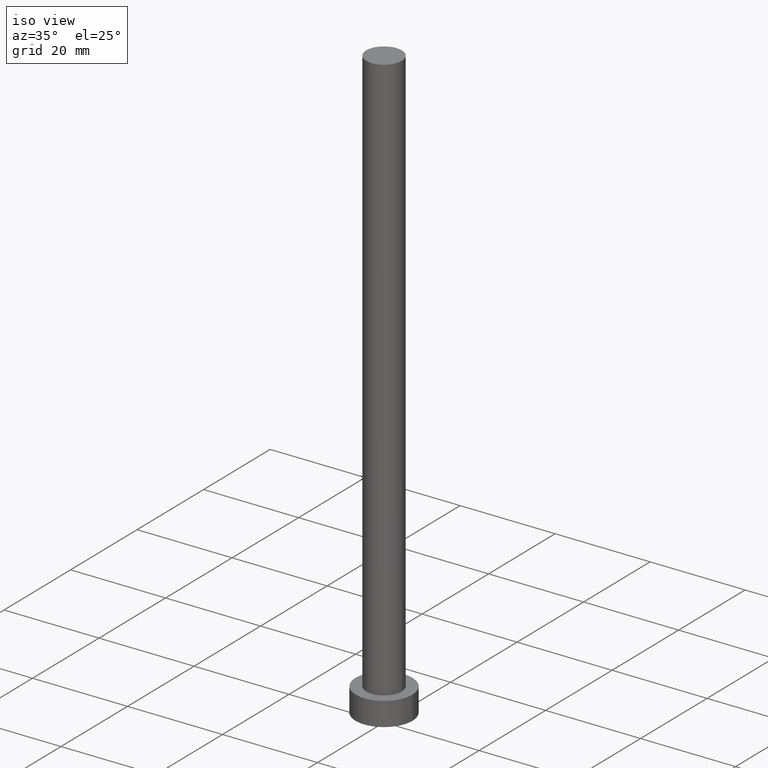
[diagram: clean part render]
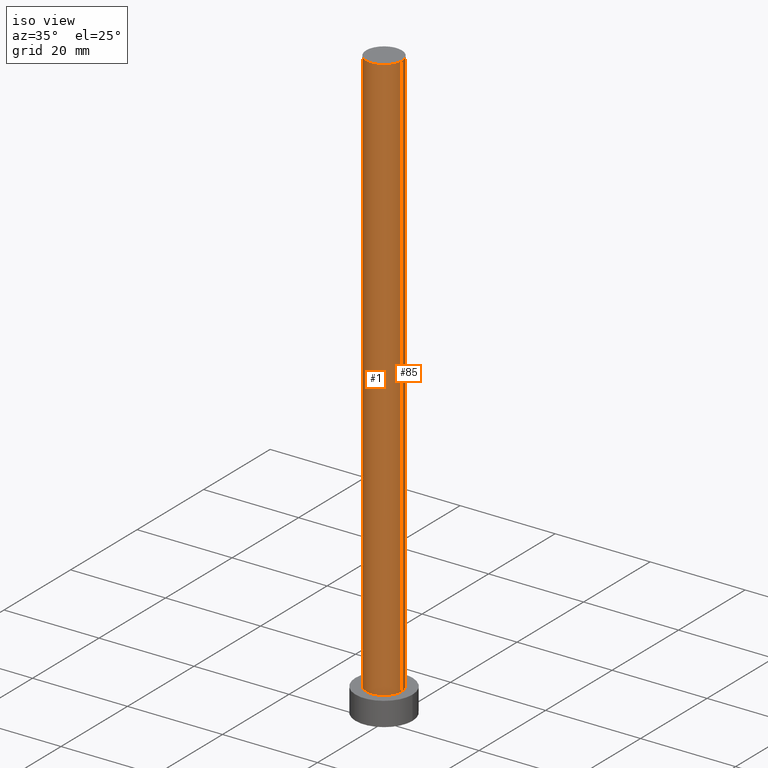
[diagram: same view with one multi-face feature highlighted, each face labeled with its STEP entity id]
A machine part, iso view. The highlighted faces form ONE feature: a constant-radius fillet chain: 2 tangent blend faces with common blend radius 3.75 mm. The faces share edges in the B-rep.
Their STEP definitions:
[1] entity #85 (Cylinder):
#13 = CARTESIAN_POINT ( 'NONE',  ( 0.000000000000000000, 0.000000000000000000, 125.0000000000000000 ) ) ;
#16 = CARTESIAN_POINT ( 'NONE',  ( -3.750000000000000000, 0.000000000000000000, 125.0000000000000000 ) ) ;
#17 = AXIS2_PLACEMENT_3D ( 'NONE', #13, #113, #59 ) ;
#26 = ORIENTED_EDGE ( 'NONE', *, *, #102, .F. ) ;
#39 = DIRECTION ( 'NONE',  ( 1.000000000000000000, 0.000000000000000000, 0.000000000000000000 ) ) ;
#46 = AXIS2_PLACEMENT_3D ( 'NONE', #171, #93, #39 ) ;
#53 = VERTEX_POINT ( 'NONE', #145 ) ;
#59 = DIRECTION ( 'NONE',  ( 1.000000000000000000, 0.000000000000000000, 0.000000000000000000 ) ) ;
#76 = DIRECTION ( 'NONE',  ( -1.000000000000000000, 0.000000000000000000, 0.000000000000000000 ) ) ;
#77 = EDGE_CURVE ( 'NONE', #225, #53, #94, .T. ) ;
#81 = LINE ( 'NONE', #208, #109 ) ;
#85 = ADVANCED_FACE ( 'NONE', ( #190 ), #152, .T. ) ;
#93 = DIRECTION ( 'NONE',  ( 0.000000000000000000, 0.000000000000000000, 1.000000000000000000 ) ) ;
#94 = LINE ( 'NONE', #139, #184 ) ;
#102 = EDGE_CURVE ( 'NONE', #225, #226, #135, .T. ) ;
#109 = VECTOR ( 'NONE', #211, 1000.000000000000000 ) ;
#111 = ORIENTED_EDGE ( 'NONE', *, *, #77, .T. ) ;
#113 = DIRECTION ( 'NONE',  ( 0.000000000000000000, 0.000000000000000000, 1.000000000000000000 ) ) ;
#119 = CIRCLE ( 'NONE', #46, 3.750000000000000000 ) ;
#126 = ORIENTED_EDGE ( 'NONE', *, *, #164, .T. ) ;
#135 = CIRCLE ( 'NONE', #17, 3.750000000000000000 ) ;
#138 = CARTESIAN_POINT ( 'NONE',  ( 3.750000000000000000, 4.592425496802573972E-16, 125.0000000000000000 ) ) ;
#139 = CARTESIAN_POINT ( 'NONE',  ( 3.750000000000000000, 4.592425496802573972E-16, 125.0000000000000000 ) ) ;
#145 = CARTESIAN_POINT ( 'NONE',  ( 3.750000000000000000, 4.592425496802573972E-16, 5.000000000000000000 ) ) ;
#152 = CYLINDRICAL_SURFACE ( 'NONE', #247, 3.750000000000000000 ) ;
#160 = EDGE_LOOP ( 'NONE', ( #26, #111, #126, #181 ) ) ;
#164 = EDGE_CURVE ( 'NONE', #53, #223, #119, .T. ) ;
#171 = CARTESIAN_POINT ( 'NONE',  ( 0.000000000000000000, 0.000000000000000000, 5.000000000000000000 ) ) ;
#181 = ORIENTED_EDGE ( 'NONE', *, *, #191, .F. ) ;
#184 = VECTOR ( 'NONE', #214, 1000.000000000000000 ) ;
#188 = CARTESIAN_POINT ( 'NONE',  ( 0.000000000000000000, 0.000000000000000000, 125.0000000000000000 ) ) ;
#190 = FACE_OUTER_BOUND ( 'NONE', #160, .T. ) ;
#191 = EDGE_CURVE ( 'NONE', #226, #223, #81, .T. ) ;
#192 = CARTESIAN_POINT ( 'NONE',  ( -3.750000000000000000, 0.000000000000000000, 5.000000000000000000 ) ) ;
#208 = CARTESIAN_POINT ( 'NONE',  ( -3.750000000000000000, 0.000000000000000000, 125.0000000000000000 ) ) ;
#211 = DIRECTION ( 'NONE',  ( -0.000000000000000000, -0.000000000000000000, -1.000000000000000000 ) ) ;
#214 = DIRECTION ( 'NONE',  ( -0.000000000000000000, -0.000000000000000000, -1.000000000000000000 ) ) ;
#223 = VERTEX_POINT ( 'NONE', #192 ) ;
#225 = VERTEX_POINT ( 'NONE', #138 ) ;
#226 = VERTEX_POINT ( 'NONE', #16 ) ;
#230 = DIRECTION ( 'NONE',  ( -0.000000000000000000, -0.000000000000000000, -1.000000000000000000 ) ) ;
#247 = AXIS2_PLACEMENT_3D ( 'NONE', #188, #230, #76 ) ;
[2] entity #1 (Cylinder):
#1 = ADVANCED_FACE ( 'NONE', ( #90 ), #183, .T. ) ;
#6 = ORIENTED_EDGE ( 'NONE', *, *, #246, .T. ) ;
#7 = EDGE_LOOP ( 'NONE', ( #147, #161, #72, #6 ) ) ;
#16 = CARTESIAN_POINT ( 'NONE',  ( -3.750000000000000000, 0.000000000000000000, 125.0000000000000000 ) ) ;
#25 = AXIS2_PLACEMENT_3D ( 'NONE', #89, #243, #162 ) ;
#33 = AXIS2_PLACEMENT_3D ( 'NONE', #163, #75, #245 ) ;
#37 = DIRECTION ( 'NONE',  ( 1.000000000000000000, 0.000000000000000000, 0.000000000000000000 ) ) ;
#53 = VERTEX_POINT ( 'NONE', #145 ) ;
#72 = ORIENTED_EDGE ( 'NONE', *, *, #191, .T. ) ;
#75 = DIRECTION ( 'NONE',  ( -0.000000000000000000, -0.000000000000000000, -1.000000000000000000 ) ) ;
#77 = EDGE_CURVE ( 'NONE', #225, #53, #94, .T. ) ;
#81 = LINE ( 'NONE', #208, #109 ) ;
#84 = CIRCLE ( 'NONE', #25, 3.750000000000000000 ) ;
#89 = CARTESIAN_POINT ( 'NONE',  ( 0.000000000000000000, 0.000000000000000000, 5.000000000000000000 ) ) ;
#90 = FACE_OUTER_BOUND ( 'NONE', #7, .T. ) ;
#94 = LINE ( 'NONE', #139, #184 ) ;
#109 = VECTOR ( 'NONE', #211, 1000.000000000000000 ) ;
#138 = CARTESIAN_POINT ( 'NONE',  ( 3.750000000000000000, 4.592425496802573972E-16, 125.0000000000000000 ) ) ;
#139 = CARTESIAN_POINT ( 'NONE',  ( 3.750000000000000000, 4.592425496802573972E-16, 125.0000000000000000 ) ) ;
#145 = CARTESIAN_POINT ( 'NONE',  ( 3.750000000000000000, 4.592425496802573972E-16, 5.000000000000000000 ) ) ;
#147 = ORIENTED_EDGE ( 'NONE', *, *, #77, .F. ) ;
#148 = EDGE_CURVE ( 'NONE', #226, #225, #180, .T. ) ;
#161 = ORIENTED_EDGE ( 'NONE', *, *, #148, .F. ) ;
#162 = DIRECTION ( 'NONE',  ( 1.000000000000000000, 0.000000000000000000, 0.000000000000000000 ) ) ;
#163 = CARTESIAN_POINT ( 'NONE',  ( 0.000000000000000000, 0.000000000000000000, 125.0000000000000000 ) ) ;
#180 = CIRCLE ( 'NONE', #194, 3.750000000000000000 ) ;
#183 = CYLINDRICAL_SURFACE ( 'NONE', #33, 3.750000000000000000 ) ;
#184 = VECTOR ( 'NONE', #214, 1000.000000000000000 ) ;
#191 = EDGE_CURVE ( 'NONE', #226, #223, #81, .T. ) ;
#192 = CARTESIAN_POINT ( 'NONE',  ( -3.750000000000000000, 0.000000000000000000, 5.000000000000000000 ) ) ;
#194 = AXIS2_PLACEMENT_3D ( 'NONE', #252, #231, #37 ) ;
#208 = CARTESIAN_POINT ( 'NONE',  ( -3.750000000000000000, 0.000000000000000000, 125.0000000000000000 ) ) ;
#211 = DIRECTION ( 'NONE',  ( -0.000000000000000000, -0.000000000000000000, -1.000000000000000000 ) ) ;
#214 = DIRECTION ( 'NONE',  ( -0.000000000000000000, -0.000000000000000000, -1.000000000000000000 ) ) ;
#223 = VERTEX_POINT ( 'NONE', #192 ) ;
#225 = VERTEX_POINT ( 'NONE', #138 ) ;
#226 = VERTEX_POINT ( 'NONE', #16 ) ;
#231 = DIRECTION ( 'NONE',  ( 0.000000000000000000, 0.000000000000000000, 1.000000000000000000 ) ) ;
#243 = DIRECTION ( 'NONE',  ( 0.000000000000000000, 0.000000000000000000, 1.000000000000000000 ) ) ;
#245 = DIRECTION ( 'NONE',  ( -1.000000000000000000, 0.000000000000000000, 0.000000000000000000 ) ) ;
#246 = EDGE_CURVE ( 'NONE', #223, #53, #84, .T. ) ;
#252 = CARTESIAN_POINT ( 'NONE',  ( 0.000000000000000000, 0.000000000000000000, 125.0000000000000000 ) ) ;